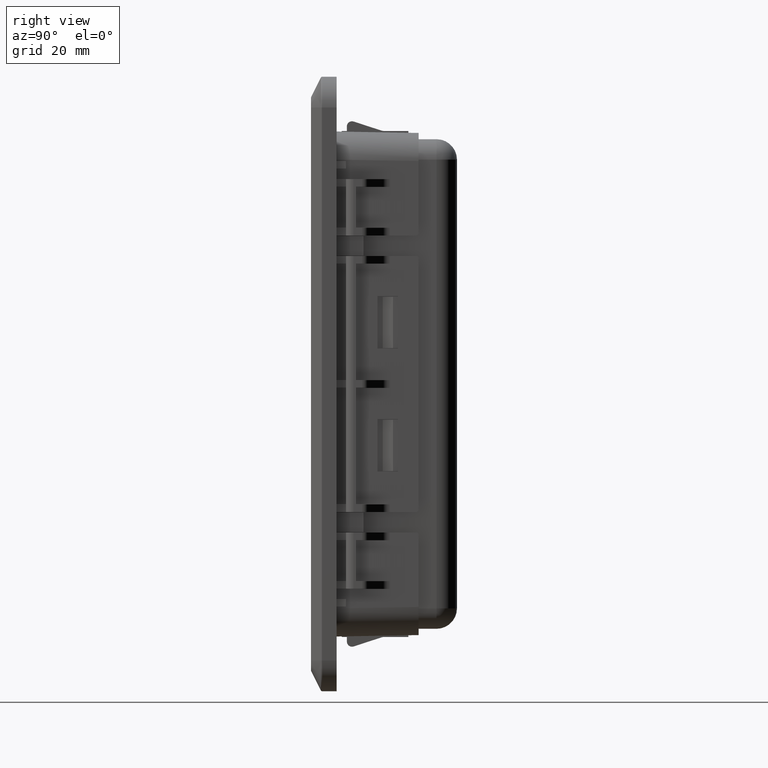
[diagram: clean part render]
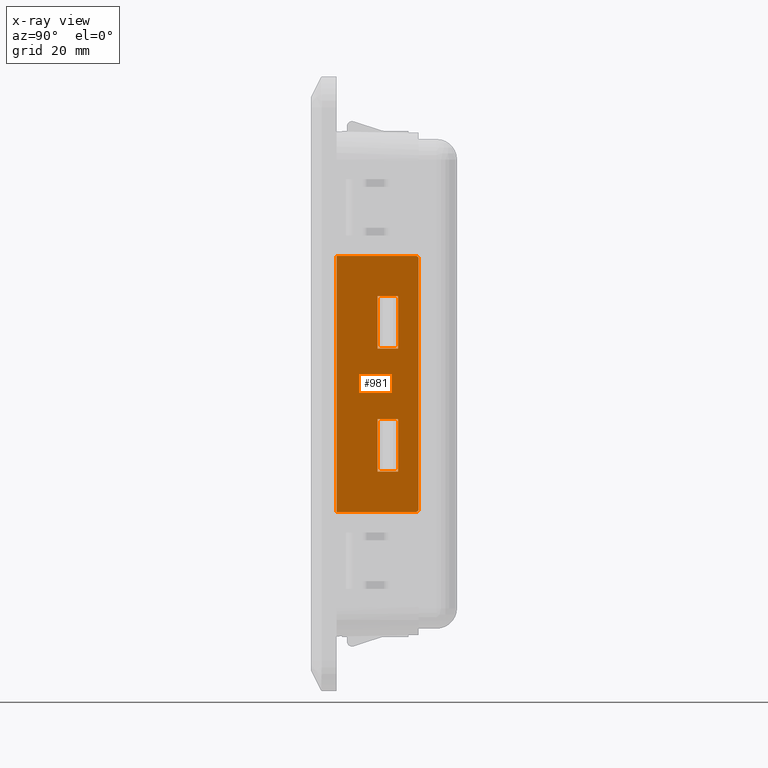
[diagram: x-ray — body ghosted, one internal face saturated and labeled with its STEP entity id]
A machine part, right view, then the same camera in x-ray: the body is ghosted and one INTERNAL B-rep face — a face not visible from any outside direction — is saturated and labeled: STEP entity #981.
In plain terms, the highlighted planar face has unit normal (0.9998, -0.0175, -0).
Its self-contained STEP definition (entity closure, byte-faithful):
#981=ADVANCED_FACE('',(#10464,#10465,#10466),#10463,.F.);
#10463=PLANE('',#18709);
#10464=FACE_OUTER_BOUND('',#18710,.T.);
#10465=FACE_BOUND('',#18711,.T.);
#10466=FACE_BOUND('',#18712,.T.);
#18706=CARTESIAN_POINT('',(2.92720718966E+001,-1.60000000001E+000,-3.00000000001E+001));
#18707=DIRECTION('',(9.99847695156E-001,-1.74524064373E-002,-1.75003560705E-014));
#18708=DIRECTION('',(1.74524064373E-002,9.99847695156E-001,0.00000000000E+000));
#18709=AXIS2_PLACEMENT_3D('',#18706,#18707,#18708);
#18710=EDGE_LOOP('',(#23489,#23490,#23491,#23492,#23493,#23494));
#18711=EDGE_LOOP('',(#23495,#23496,#23497,#23498,#23499,#23500));
#18712=EDGE_LOOP('',(#23501,#23502,#23503,#23504,#23505,#23506));
#23489=ORIENTED_EDGE('',*,*,#24922,.T.);
#23490=ORIENTED_EDGE('',*,*,#25271,.T.);
#23491=ORIENTED_EDGE('',*,*,#24952,.F.);
#23492=ORIENTED_EDGE('',*,*,#25535,.T.);
#23493=ORIENTED_EDGE('',*,*,#25077,.F.);
#23494=ORIENTED_EDGE('',*,*,#25536,.T.);
#23495=ORIENTED_EDGE('',*,*,#24917,.T.);
#23496=ORIENTED_EDGE('',*,*,#24905,.T.);
#23497=ORIENTED_EDGE('',*,*,#24908,.T.);
#23498=ORIENTED_EDGE('',*,*,#24911,.T.);
#23499=ORIENTED_EDGE('',*,*,#25433,.T.);
#23500=ORIENTED_EDGE('',*,*,#24914,.T.);
#23501=ORIENTED_EDGE('',*,*,#24901,.T.);
#23502=ORIENTED_EDGE('',*,*,#24890,.T.);
#23503=ORIENTED_EDGE('',*,*,#25450,.T.);
#23504=ORIENTED_EDGE('',*,*,#24886,.T.);
#23505=ORIENTED_EDGE('',*,*,#24896,.T.);
#23506=ORIENTED_EDGE('',*,*,#24899,.T.);
#24886=EDGE_CURVE('',#34396,#34397,#34398,.T.);
#24890=EDGE_CURVE('',#34425,#34418,#34426,.T.);
#24896=EDGE_CURVE('',#34397,#34459,#34466,.T.);
#24899=EDGE_CURVE('',#34459,#34479,#34486,.T.);
#24901=EDGE_CURVE('',#34479,#34425,#34498,.T.);
#24905=EDGE_CURVE('',#34505,#34519,#34526,.T.);
#24908=EDGE_CURVE('',#34519,#34539,#34546,.T.);
#24911=EDGE_CURVE('',#34539,#34560,#34567,.T.);
#24914=EDGE_CURVE('',#34587,#34580,#34588,.T.);
#24917=EDGE_CURVE('',#34580,#34505,#34606,.T.);
#24922=EDGE_CURVE('',#34640,#34633,#34641,.T.);
#24952=EDGE_CURVE('',#34845,#34846,#34847,.T.);
#25077=EDGE_CURVE('',#35677,#35678,#35679,.T.);
#25271=EDGE_CURVE('',#34633,#34846,#36974,.T.);
#25433=EDGE_CURVE('',#34560,#34587,#38041,.T.);
#25450=EDGE_CURVE('',#34418,#34396,#38147,.T.);
#25535=EDGE_CURVE('',#34845,#35678,#38685,.T.);
#25536=EDGE_CURVE('',#35677,#34640,#38691,.T.);
#34396=VERTEX_POINT('',#46794);
#34397=VERTEX_POINT('',#46795);
#34398=LINE('',#46796,#46797);
#34418=VERTEX_POINT('',#46807);
#34425=VERTEX_POINT('',#46811);
#34426=LINE('',#46812,#46813);
#34459=VERTEX_POINT('',#46830);
#34466=LINE('',#46834,#46835);
#34479=VERTEX_POINT('',#46841);
#34486=LINE('',#46845,#46846);
#34498=LINE('',#46851,#46852);
#34505=VERTEX_POINT('',#46855);
#34519=VERTEX_POINT('',#46863);
#34526=LINE('',#46867,#46868);
#34539=VERTEX_POINT('',#46874);
#34546=LINE('',#46878,#46879);
#34560=VERTEX_POINT('',#46886);
#34567=LINE('',#46890,#46891);
#34580=VERTEX_POINT('',#46897);
#34587=VERTEX_POINT('',#46901);
#34588=LINE('',#46902,#46903);
#34606=LINE('',#46911,#46912);
#34633=VERTEX_POINT('',#46926);
#34640=VERTEX_POINT('',#46930);
#34641=LINE('',#46931,#46932);
#34845=VERTEX_POINT('',#47054);
#34846=VERTEX_POINT('',#47055);
#34847=LINE('',#47056,#47057);
#35677=VERTEX_POINT('',#47518);
#35678=VERTEX_POINT('',#47519);
#35679=LINE('',#47520,#47521);
#36974=LINE('',#48342,#48343);
#38041=LINE('',#48934,#48935);
#38147=LINE('',#48989,#48990);
#38685=(BOUNDED_CURVE() B_SPLINE_CURVE(2,(#49290,#49291,#49292),.UNSPECIFIED.,.F.,.F.) B_SPLINE_CURVE_WITH_KNOTS((3,3),(-1.57079632680E+000,1.00275343584E-012),.UNSPECIFIED.) CURVE() GEOMETRIC_REPRESENTATION_ITEM() RATIONAL_B_SPLINE_CURVE((1.00000000000E+000,7.07106781186E-001,1.00000000000E+000)) REPRESENTATION_ITEM('') );
#38691=(BOUNDED_CURVE() B_SPLINE_CURVE(2,(#49293,#49294,#49295),.UNSPECIFIED.,.F.,.F.) B_SPLINE_CURVE_WITH_KNOTS((3,3),(-3.14159265359E+000,-1.57079632679E+000),.UNSPECIFIED.) CURVE() GEOMETRIC_REPRESENTATION_ITEM() RATIONAL_B_SPLINE_CURVE((1.00000000000E+000,7.07106781187E-001,1.00000000000E+000)) REPRESENTATION_ITEM('') );
#46794=CARTESIAN_POINT('',(2.95094607796E+001,1.20000000000E+001,-7.00000000000E+000));
#46795=CARTESIAN_POINT('',(2.95094607796E+001,1.20000000000E+001,-6.89999999950E+000));
#46796=CARTESIAN_POINT('',(2.95094607796E+001,1.20000000000E+001,-7.00000000000E+000));
#46797=VECTOR('',#46798,1.00000000502E-001);
#46798=DIRECTION('',(-3.55271366095E-014,-1.58095757912E-012,1.00000000000E+000));
#46807=CARTESIAN_POINT('',(2.95094607796E+001,1.20000000000E+001,-1.70000000000E+001));
#46811=CARTESIAN_POINT('',(2.95094607796E+001,1.20000000000E+001,-1.70999999995E+001));
#46812=CARTESIAN_POINT('',(2.95094607796E+001,1.20000000000E+001,-1.70999999995E+001));
#46813=VECTOR('',#46814,9.99999994976E-002);
#46814=DIRECTION('',(-3.55271369665E-014,-1.56319402653E-012,1.00000000000E+000));
#46830=CARTESIAN_POINT('',(2.94396405199E+001,7.99999999996E+000,-6.89999999893E+000));
#46834=CARTESIAN_POINT('',(2.95094607796E+001,1.20000000000E+001,-6.89999999950E+000));
#46835=VECTOR('',#46836,4.00060931218E+000);
#46836=DIRECTION('',(-1.74524064373E-002,-9.99847695156E-001,-1.54874724632E-012));
#46841=CARTESIAN_POINT('',(2.94396405199E+001,7.99999999998E+000,-1.70999999995E+001));
#46845=CARTESIAN_POINT('',(2.94396405199E+001,7.99999999996E+000,-6.89999999893E+000));
#46846=VECTOR('',#46847,1.02000000006E+001);
#46847=DIRECTION('',(1.01008526156E-014,1.56876690279E-012,-1.00000000000E+000));
#46851=CARTESIAN_POINT('',(2.94396405199E+001,7.99999999998E+000,-1.70999999995E+001));
#46852=VECTOR('',#46853,4.00060931218E+000);
#46853=DIRECTION('',(1.74524064373E-002,9.99847695156E-001,1.57716462698E-012));
#46855=CARTESIAN_POINT('',(2.94396405199E+001,7.99999999995E+000,1.71000000001E+001));
#46863=CARTESIAN_POINT('',(2.94396405199E+001,7.99999999995E+000,6.90000000008E+000));
#46867=CARTESIAN_POINT('',(2.94396405199E+001,7.99999999995E+000,1.71000000001E+001));
#46868=VECTOR('',#46869,1.02000000000E+001);
#46869=DIRECTION('',(-1.77635683940E-014,0.00000000000E+000,-1.00000000000E+000));
#46874=CARTESIAN_POINT('',(2.95094607796E+001,1.20000000000E+001,6.89999999951E+000));
#46878=CARTESIAN_POINT('',(2.94396405199E+001,7.99999999995E+000,6.90000000008E+000));
#46879=VECTOR('',#46880,4.00060931218E+000);
#46880=DIRECTION('',(1.74524064373E-002,9.99847695156E-001,2.84173806664E-014));
#46886=CARTESIAN_POINT('',(2.95094607796E+001,1.20000000000E+001,7.00000000017E+000));
#46890=CARTESIAN_POINT('',(2.95094607796E+001,1.20000000000E+001,6.89999999951E+000));
#46891=VECTOR('',#46892,1.00000000661E-001);
#46892=DIRECTION('',(3.55271365533E-014,0.00000000000E+000,1.00000000000E+000));
#46897=CARTESIAN_POINT('',(2.95094607796E+001,1.20000000000E+001,1.71000000001E+001));
#46901=CARTESIAN_POINT('',(2.95094607796E+001,1.20000000000E+001,1.70000000002E+001));
#46902=CARTESIAN_POINT('',(2.95094607796E+001,1.20000000000E+001,1.70000000002E+001));
#46903=VECTOR('',#46904,9.99999999108E-002);
#46904=DIRECTION('',(3.55271368197E-014,0.00000000000E+000,1.00000000000E+000));
#46911=CARTESIAN_POINT('',(2.95094607796E+001,1.20000000000E+001,1.71000000001E+001));
#46912=VECTOR('',#46913,4.00060931218E+000);
#46913=DIRECTION('',(-1.74524064373E-002,-9.99847695156E-001,2.13130354998E-014));
#46926=CARTESIAN_POINT('',(2.93000000005E+001,-1.19938781129E-011,-2.50000000000E+001));
#46930=CARTESIAN_POINT('',(2.95705535069E+001,1.55000000000E+001,-2.50000000001E+001));
#46931=CARTESIAN_POINT('',(2.95705535069E+001,1.55000000000E+001,-2.50000000001E+001));
#46932=VECTOR('',#46933,1.55023610846E+001);
#46933=DIRECTION('',(-1.74524064373E-002,-9.99847695156E-001,0.00000000000E+000));
#47054=CARTESIAN_POINT('',(2.95705535069E+001,1.55000000000E+001,2.50000000001E+001));
#47055=CARTESIAN_POINT('',(2.93000000005E+001,-1.19938781129E-011,2.50000000000E+001));
#47056=CARTESIAN_POINT('',(2.95705535069E+001,1.55000000000E+001,2.50000000001E+001));
#47057=VECTOR('',#47058,1.55023610846E+001);
#47058=DIRECTION('',(-1.74524064373E-002,-9.99847695156E-001,0.00000000000E+000));
#47518=CARTESIAN_POINT('',(2.95792810393E+001,1.60000000000E+001,-2.45000000001E+001));
#47519=CARTESIAN_POINT('',(2.95792810393E+001,1.60000000000E+001,2.45000000001E+001));
#47520=CARTESIAN_POINT('',(2.95792810393E+001,1.60000000000E+001,-2.45000000001E+001));
#47521=VECTOR('',#47522,4.90000000002E+001);
#47522=DIRECTION('',(1.75460553116E-014,0.00000000000E+000,1.00000000000E+000));
#48342=CARTESIAN_POINT('',(2.93000000005E+001,-1.19938781129E-011,-2.50000000000E+001));
#48343=VECTOR('',#48344,5.00000000000E+001);
#48344=DIRECTION('',(1.75504055733E-014,0.00000000000E+000,1.00000000000E+000));
#48934=CARTESIAN_POINT('',(2.95094607796E+001,1.20000000000E+001,7.00000000017E+000));
#48935=VECTOR('',#48936,1.00000000000E+001);
#48936=DIRECTION('',(1.74082970261E-014,0.00000000000E+000,1.00000000000E+000));
#48989=CARTESIAN_POINT('',(2.95094607796E+001,1.20000000000E+001,-1.70000000000E+001));
#48990=VECTOR('',#48991,1.00000000000E+001);
#48991=DIRECTION('',(-9.59232693276E-015,-1.56870072487E-012,1.00000000000E+000));
#49290=CARTESIAN_POINT('',(2.95705535069E+001,1.55000000000E+001,2.50000000001E+001));
#49291=CARTESIAN_POINT('',(2.95792810393E+001,1.60000000000E+001,2.50000000001E+001));
#49292=CARTESIAN_POINT('',(2.95792810393E+001,1.60000000000E+001,2.45000000001E+001));
#49293=CARTESIAN_POINT('',(2.95792810393E+001,1.60000000000E+001,-2.45000000001E+001));
#49294=CARTESIAN_POINT('',(2.95792810393E+001,1.60000000000E+001,-2.50000000001E+001));
#49295=CARTESIAN_POINT('',(2.95705535069E+001,1.55000000000E+001,-2.50000000001E+001));